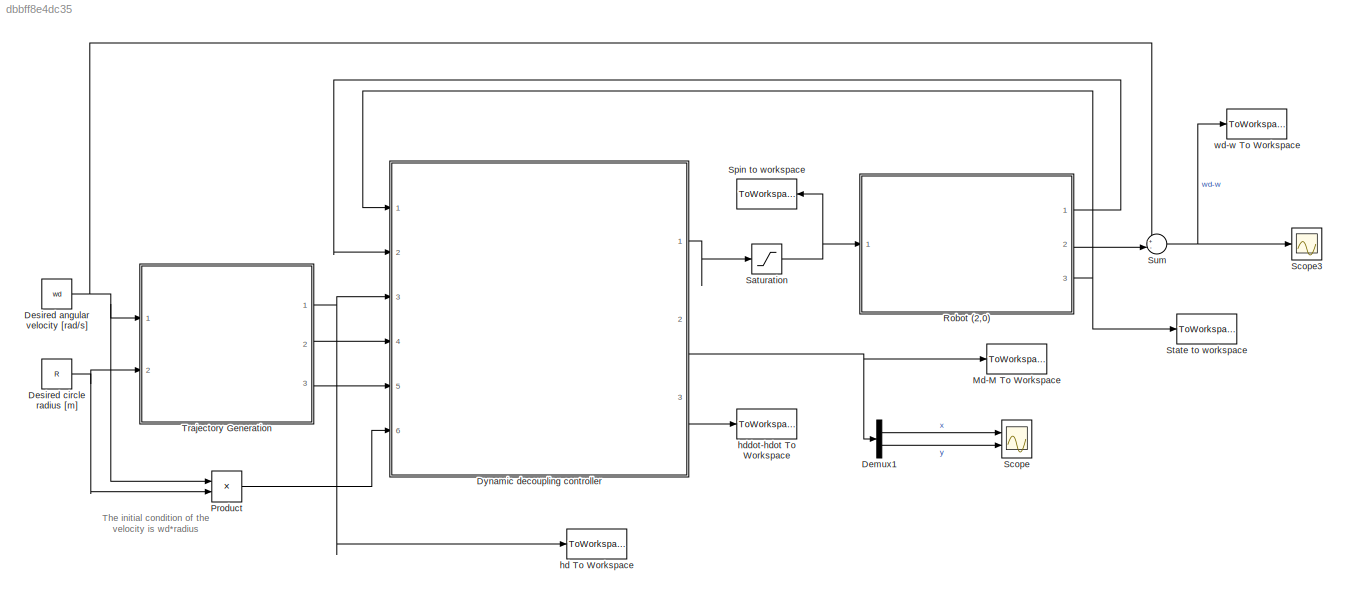
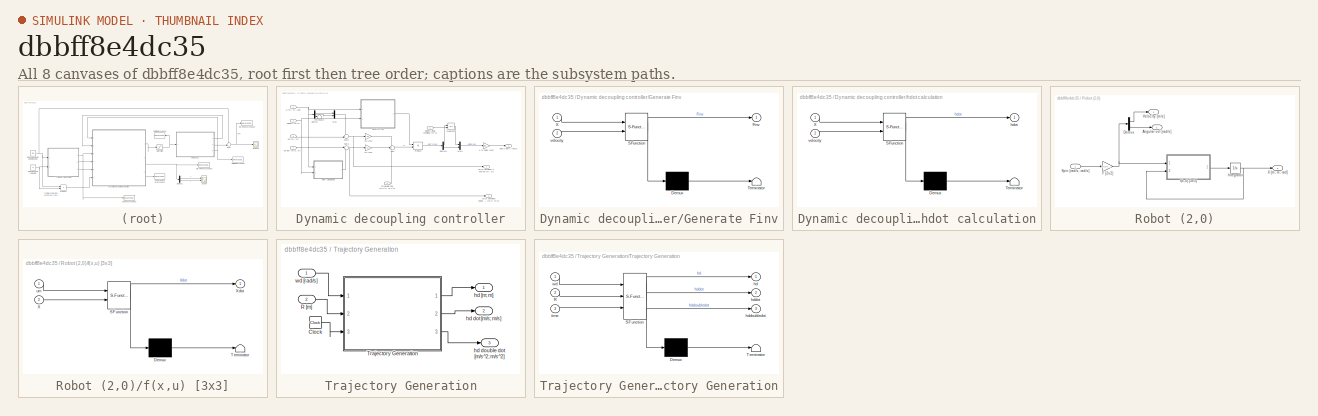
[diagram: thumbnail index - all 8 canvases of the model, root first then tree order]
MODEL slx_dbbff8e4dc35
KIND model
CONFIG AbsTol = auto
CONFIG EnableMultiTasking = off
CONFIG FixedStep = auto
CONFIG MaxStep = auto
CONFIG MinStep = auto
CONFIG RelTol = 1e-3
CONFIG SampleTimeConstraint = Unconstrained
CONFIG Solver = VariableStepAuto
CONFIG SolverName = VariableStepAuto
CONFIG StartTime = 0.0
CONFIG StopTime = time
BLOCK [Demux] Demux1
  DisplayOption = bar
  Outputs = 2
  Ports = [1, 2]
BLOCK [Constant] Desired angular velocity [rad//s]
  Value = wd
BLOCK [Constant] Desired circle radius [m]
  Value = R
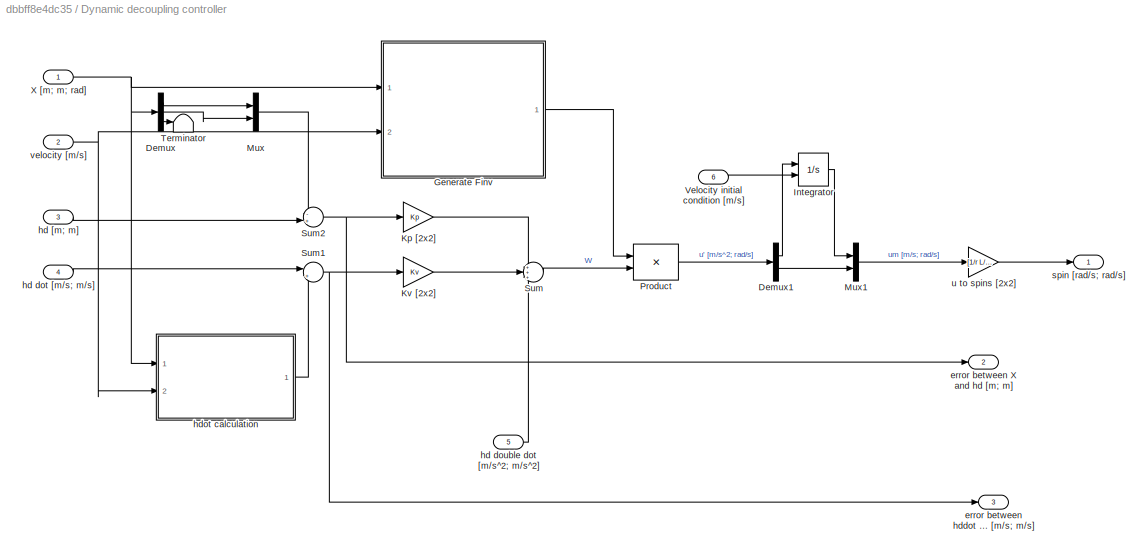
BLOCK [SubSystem] Dynamic decoupling controller
  MinAlgLoopOccurrences = on
  Ports = [6, 3]
  RequestExecContextInheritance = off
  Variant = off
BLOCK [Demux] Dynamic decoupling controller/Demux
  DisplayOption = bar
  Outputs = 3
  Ports = [1, 3]
BLOCK [Demux] Dynamic decoupling controller/Demux1
  DisplayOption = bar
  Outputs = 2
  Ports = [1, 2]
BLOCK [SubSystem] Dynamic decoupling controller/Generate Finv
  ErrorFcn = Stateflow.Translate.translate
  PermitHierarchicalResolution = ExplicitOnly
  Ports = [2, 1]
  RequestExecContextInheritance = off
  SFBlockType = MATLAB Function
  TreatAsAtomicUnit = on
  Variant = off
BLOCK [Demux] Dynamic decoupling controller/Generate Finv/ Demux 
  Outputs = 1
  Ports = [1, 1]
BLOCK [S-Function] Dynamic decoupling controller/Generate Finv/ SFunction 
  EnableBusSupport = on
  FunctionName = sf_sfun
  PortCounts = [2 2]
  Ports = [2, 2]
  SFcnIsStateOwnerBlock = off
  SFunctionDeploymentMode = off
  Tag = Stateflow S-Function dynamicDecouplingControl 1
BLOCK [Terminator] Dynamic decoupling controller/Generate Finv/ Terminator 
BLOCK [Outport] Dynamic decoupling controller/Generate Finv/Finv
  IconDisplay = Port number
BLOCK [Inport] Dynamic decoupling controller/Generate Finv/X
  IconDisplay = Port number
BLOCK [Inport] Dynamic decoupling controller/Generate Finv/velocity
  IconDisplay = Port number
  Port = 2
BLOCK [Integrator] Dynamic decoupling controller/Integrator
  InitialConditionSource = external
  Ports = [2, 1]
BLOCK [Gain] Dynamic decoupling controller/Kp [2x2]
  Gain = Kp
  Multiplication = Matrix(K*u)
  OutDataTypeStr = Inherit: Inherit via internal rule
  ParamDataTypeStr = Inherit: Inherit via internal rule
  SaturateOnIntegerOverflow = off
BLOCK [Gain] Dynamic decoupling controller/Kv [2x2]
  Gain = Kv
  Multiplication = Matrix(K*u)
  OutDataTypeStr = Inherit: Inherit via internal rule
  ParamDataTypeStr = Inherit: Inherit via internal rule
  SaturateOnIntegerOverflow = off
BLOCK [Mux] Dynamic decoupling controller/Mux
  DisplayOption = bar
  Inputs = 2
  Ports = [2, 1]
BLOCK [Mux] Dynamic decoupling controller/Mux1
  DisplayOption = bar
  Inputs = 2
  Ports = [2, 1]
BLOCK [Product] Dynamic decoupling controller/Product
  InputSameDT = off
  Multiplication = Matrix(*)
  OutDataTypeStr = Inherit: Inherit via internal rule
  Ports = [2, 1]
  RndMeth = Floor
  SaturateOnIntegerOverflow = off
BLOCK [Sum] Dynamic decoupling controller/Sum
  IconShape = round
  InputSameDT = off
  Inputs = +++
  OutDataTypeStr = Inherit: Inherit via internal rule
  Ports = [3, 1]
  SaturateOnIntegerOverflow = off
BLOCK [Sum] Dynamic decoupling controller/Sum1
  IconShape = round
  InputSameDT = off
  Inputs = |+-
  OutDataTypeStr = Inherit: Inherit via internal rule
  Ports = [2, 1]
  SaturateOnIntegerOverflow = off
BLOCK [Sum] Dynamic decoupling controller/Sum2
  IconShape = round
  InputSameDT = off
  Inputs = -+|
  OutDataTypeStr = Inherit: Inherit via internal rule
  Ports = [2, 1]
  SaturateOnIntegerOverflow = off
BLOCK [Terminator] Dynamic decoupling controller/Terminator
BLOCK [Inport] Dynamic decoupling controller/Velocity initial condition [m//s]
  IconDisplay = Port number
  Port = 6
BLOCK [Inport] Dynamic decoupling controller/X [m; m; rad]
  IconDisplay = Port number
BLOCK [Outport] Dynamic decoupling controller/error between X and hd [m; m]
  IconDisplay = Port number
  Port = 2
BLOCK [Outport] Dynamic decoupling controller/error between hddot and hdot [m//s; m//s]
  IconDisplay = Port number
  Port = 3
BLOCK [Inport] Dynamic decoupling controller/hd [m; m]
  IconDisplay = Port number
  Port = 3
BLOCK [Inport] Dynamic decoupling controller/hd dot [m//s; m//s]
  IconDisplay = Port number
  Port = 4
BLOCK [Inport] Dynamic decoupling controller/hd double dot [m//s^2; m//s^2]
  IconDisplay = Port number
  Port = 5
BLOCK [SubSystem] Dynamic decoupling controller/hdot calculation
  ErrorFcn = Stateflow.Translate.translate
  PermitHierarchicalResolution = ExplicitOnly
  Ports = [2, 1]
  RequestExecContextInheritance = off
  SFBlockType = MATLAB Function
  TreatAsAtomicUnit = on
  Variant = off
BLOCK [Demux] Dynamic decoupling controller/hdot calculation/ Demux 
  Outputs = 1
  Ports = [1, 1]
BLOCK [S-Function] Dynamic decoupling controller/hdot calculation/ SFunction 
  EnableBusSupport = on
  FunctionName = sf_sfun
  PortCounts = [2 2]
  Ports = [2, 2]
  SFcnIsStateOwnerBlock = off
  SFunctionDeploymentMode = off
  Tag = Stateflow S-Function dynamicDecouplingControl 4
BLOCK [Terminator] Dynamic decoupling controller/hdot calculation/ Terminator 
BLOCK [Inport] Dynamic decoupling controller/hdot calculation/X
  IconDisplay = Port number
BLOCK [Outport] Dynamic decoupling controller/hdot calculation/hdot
  IconDisplay = Port number
BLOCK [Inport] Dynamic decoupling controller/hdot calculation/velocity
  IconDisplay = Port number
  Port = 2
BLOCK [Outport] Dynamic decoupling controller/spin [rad//s; rad//s]
  IconDisplay = Port number
BLOCK [Gain] Dynamic decoupling controller/u to spins [2x2]
  Gain = [1/r L/r; 1/r -L/r]
  Multiplication = Matrix(K*u)
  OutDataTypeStr = Inherit: Inherit via internal rule
  ParamDataTypeStr = Inherit: Inherit via internal rule
  SaturateOnIntegerOverflow = off
BLOCK [Inport] Dynamic decoupling controller/velocity [m//s]
  IconDisplay = Port number
  Port = 2
BLOCK [ToWorkspace] Md-M To Workspace
  FixptAsFi = on
  MaxDataPoints = inf
  Ports = [1]
  SampleTime = -1
  Save2DSignal = 2-D array (concatenate along first dimension)
  VariableName = Md_M
BLOCK [Product] Product
  InputSameDT = off
  OutDataTypeStr = Inherit: Inherit via internal rule
  Ports = [2, 1]
  RndMeth = Floor
  SaturateOnIntegerOverflow = off
BLOCK [SubSystem] Robot (2,0)
  Ports = [1, 3]
  RequestExecContextInheritance = off
  Variant = off
BLOCK [Outport] Robot (2,0)/Angular vel [rad//s]
  IconDisplay = Port number
  Port = 2
BLOCK [Demux] Robot (2,0)/Demux
  DisplayOption = bar
  Outputs = 2
  Ports = [1, 2]
BLOCK [Gain] Robot (2,0)/F [2x2]
  Gain = [r/2 r/2; r/(2*L) -r/(2*L)]
  Multiplication = Matrix(K*u)
  OutDataTypeStr = Inherit: Inherit via internal rule
  ParamDataTypeStr = Inherit: Inherit via internal rule
  SaturateOnIntegerOverflow = off
BLOCK [Integrator] Robot (2,0)/Integrator
  InitialCondition = Xstart
  Ports = [1, 1]
BLOCK [Inport] Robot (2,0)/Spin [rad//s; rad//s]
  IconDisplay = Port number
BLOCK [Outport] Robot (2,0)/Velocity [m//s]
  IconDisplay = Port number
BLOCK [Outport] Robot (2,0)/X [m; m; rad]
  IconDisplay = Port number
  Port = 3
BLOCK [SubSystem] Robot (2,0)/f(x,u) [3x3]
  ErrorFcn = Stateflow.Translate.translate
  PermitHierarchicalResolution = ExplicitOnly
  Ports = [2, 1]
  RequestExecContextInheritance = off
  SFBlockType = MATLAB Function
  TreatAsAtomicUnit = on
  Variant = off
BLOCK [Demux] Robot (2,0)/f(x,u) [3x3]/ Demux 
  Outputs = 1
  Ports = [1, 1]
BLOCK [S-Function] Robot (2,0)/f(x,u) [3x3]/ SFunction 
  EnableBusSupport = on
  FunctionName = sf_sfun
  PortCounts = [2 2]
  Ports = [2, 2]
  SFcnIsStateOwnerBlock = off
  SFunctionDeploymentMode = off
  Tag = Stateflow S-Function dynamicDecouplingControl 2
BLOCK [Terminator] Robot (2,0)/f(x,u) [3x3]/ Terminator 
BLOCK [Inport] Robot (2,0)/f(x,u) [3x3]/X
  IconDisplay = Port number
  Port = 2
BLOCK [Outport] Robot (2,0)/f(x,u) [3x3]/Xdot
  IconDisplay = Port number
BLOCK [Inport] Robot (2,0)/f(x,u) [3x3]/um
  IconDisplay = Port number
BLOCK [Saturate] Saturation
  InputPortMap = u0
  LowerLimit = satMin
  Ports = [1, 1]
  UpperLimit = satMax
BLOCK [Scope] Scope
  NumInputPorts = 2
  Ports = [2]
  ScopeSpecificationString = Simulink.scopes.TimeScopeBlockCfg('CurrentConfiguration', extmgr.ConfigurationSet(extmgr.Configuration('Core','General UI',true),extmgr.Configuration('Core','Source UI',true),extmgr.Configuration('Sources','WiredSimulink',true),extmgr.Configuration('Visuals','Time Domain',true,'SerializedDisplays',{struct('MinYLimReal','-5612749978155.64258','MaxYLimReal','6332187255316.31934','YLabelReal','','Min...<+1417ch>
BLOCK [Scope] Scope3
  NumInputPorts = 1
  Ports = [1]
  ScopeSpecificationString = Simulink.scopes.TimeScopeBlockCfg('CurrentConfiguration', extmgr.ConfigurationSet(extmgr.Configuration('Core','General UI',true),extmgr.Configuration('Core','Source UI',true),extmgr.Configuration('Sources','WiredSimulink',true,'DataLoggingVariableName','ScopeData1'),extmgr.Configuration('Visuals','Time Domain',true),extmgr.Configuration('Tools','Plot Navigation',true),extmgr.Configuration('Tools',...<+40ch>
BLOCK [ToWorkspace] Spin to workspace
  FixptAsFi = on
  MaxDataPoints = inf
  Ports = [1]
  SampleTime = -1
  Save2DSignal = 2-D array (concatenate along first dimension)
  VariableName = spin
BLOCK [ToWorkspace] State to workspace
  FixptAsFi = on
  MaxDataPoints = inf
  Ports = [1]
  SampleTime = -1
  Save2DSignal = 2-D array (concatenate along first dimension)
  VariableName = X
BLOCK [Sum] Sum
  IconShape = round
  InputSameDT = off
  Inputs = +-|
  OutDataTypeStr = Inherit: Inherit via internal rule
  Ports = [2, 1]
  SaturateOnIntegerOverflow = off
BLOCK [SubSystem] Trajectory Generation
  Ports = [2, 3]
  RequestExecContextInheritance = off
  Variant = off
BLOCK [Clock] Trajectory Generation/Clock
BLOCK [Inport] Trajectory Generation/R [m]
  IconDisplay = Port number
  Port = 2
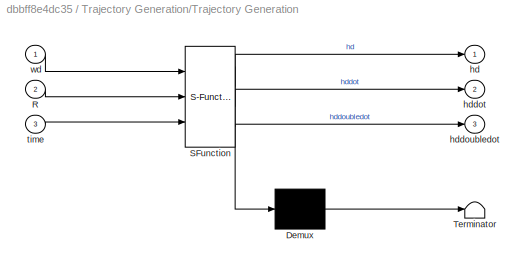
BLOCK [SubSystem] Trajectory Generation/Trajectory Generation
  ErrorFcn = Stateflow.Translate.translate
  PermitHierarchicalResolution = ExplicitOnly
  Ports = [3, 3]
  RequestExecContextInheritance = off
  SFBlockType = MATLAB Function
  TreatAsAtomicUnit = on
  Variant = off
BLOCK [Demux] Trajectory Generation/Trajectory Generation/ Demux 
  Outputs = 1
  Ports = [1, 1]
BLOCK [S-Function] Trajectory Generation/Trajectory Generation/ SFunction 
  EnableBusSupport = on
  FunctionName = sf_sfun
  PortCounts = [3 4]
  Ports = [3, 4]
  SFcnIsStateOwnerBlock = off
  SFunctionDeploymentMode = off
  Tag = Stateflow S-Function dynamicDecouplingControl 3
BLOCK [Terminator] Trajectory Generation/Trajectory Generation/ Terminator 
BLOCK [Inport] Trajectory Generation/Trajectory Generation/R
  IconDisplay = Port number
  Port = 2
BLOCK [Outport] Trajectory Generation/Trajectory Generation/hd
  IconDisplay = Port number
BLOCK [Outport] Trajectory Generation/Trajectory Generation/hddot
  IconDisplay = Port number
  Port = 2
BLOCK [Outport] Trajectory Generation/Trajectory Generation/hddoubledot
  IconDisplay = Port number
  Port = 3
BLOCK [Inport] Trajectory Generation/Trajectory Generation/time
  IconDisplay = Port number
  Port = 3
BLOCK [Inport] Trajectory Generation/Trajectory Generation/wd
  IconDisplay = Port number
BLOCK [Outport] Trajectory Generation/hd [m; m]
  IconDisplay = Port number
BLOCK [Outport] Trajectory Generation/hd dot [m//s; m//s]
  IconDisplay = Port number
  Port = 2
BLOCK [Outport] Trajectory Generation/hd double dot [m//s^2; m//s^2]
  IconDisplay = Port number
  Port = 3
BLOCK [Inport] Trajectory Generation/wd [rad//s]
  IconDisplay = Port number
BLOCK [ToWorkspace] hd To Workspace
  FixptAsFi = on
  MaxDataPoints = inf
  Ports = [1]
  SampleTime = -1
  Save2DSignal = 2-D array (concatenate along first dimension)
  VariableName = hd
BLOCK [ToWorkspace] hddot-hdot To Workspace
  FixptAsFi = on
  MaxDataPoints = inf
  Ports = [1]
  SampleTime = -1
  Save2DSignal = 2-D array (concatenate along first dimension)
  VariableName = hddot_hdot
BLOCK [ToWorkspace] wd-w To Workspace
  FixptAsFi = on
  MaxDataPoints = inf
  Ports = [1]
  SampleTime = -1
  Save2DSignal = 2-D array (concatenate along first dimension)
  VariableName = wd_w
ANNOTATION (root): The initial condition of the velocity is wd*radius
LINE Demux1:1 -> Scope:1
LINE Demux1:2 -> Scope:2
NET Desired angular velocity [rad//s]:1 -> Product:1, Sum:1, Trajectory Generation:1
NET Desired circle radius [m]:1 -> Product:2, Trajectory Generation:2
LINE Dynamic decoupling controller/Demux1:1 -> Dynamic decoupling controller/Integrator:1
LINE Dynamic decoupling controller/Demux1:2 -> Dynamic decoupling controller/Mux1:2
LINE Dynamic decoupling controller/Demux:1 -> Dynamic decoupling controller/Mux:1
LINE Dynamic decoupling controller/Demux:2 -> Dynamic decoupling controller/Mux:2
LINE Dynamic decoupling controller/Demux:3 -> Dynamic decoupling controller/Terminator:1
LINE Dynamic decoupling controller/Generate Finv:1 -> Dynamic decoupling controller/Product:1
LINE Dynamic decoupling controller/Integrator:1 -> Dynamic decoupling controller/Mux1:1
LINE Dynamic decoupling controller/Kp [2x2]:1 -> Dynamic decoupling controller/Sum:1
LINE Dynamic decoupling controller/Kv [2x2]:1 -> Dynamic decoupling controller/Sum:2
LINE Dynamic decoupling controller/Mux1:1 -> Dynamic decoupling controller/u to spins [2x2]:1
LINE Dynamic decoupling controller/Mux:1 -> Dynamic decoupling controller/Sum2:1
LINE Dynamic decoupling controller/Product:1 -> Dynamic decoupling controller/Demux1:1
NET Dynamic decoupling controller/Sum1:1 -> Dynamic decoupling controller/Kv [2x2]:1, Dynamic decoupling controller/error between hddot and hdot [m//s; m//s]:1
NET Dynamic decoupling controller/Sum2:1 -> Dynamic decoupling controller/Kp [2x2]:1, Dynamic decoupling controller/error between X and hd [m; m]:1
LINE Dynamic decoupling controller/Sum:1 -> Dynamic decoupling controller/Product:2
LINE Dynamic decoupling controller/Velocity initial condition [m//s]:1 -> Dynamic decoupling controller/Integrator:2
NET Dynamic decoupling controller/X [m; m; rad]:1 -> Dynamic decoupling controller/Demux:1, Dynamic decoupling controller/Generate Finv:1, Dynamic decoupling controller/hdot calculation:1
LINE Dynamic decoupling controller/hd [m; m]:1 -> Dynamic decoupling controller/Sum2:2
LINE Dynamic decoupling controller/hd dot [m//s; m//s]:1 -> Dynamic decoupling controller/Sum1:1
LINE Dynamic decoupling controller/hd double dot [m//s^2; m//s^2]:1 -> Dynamic decoupling controller/Sum:3
LINE Dynamic decoupling controller/hdot calculation:1 -> Dynamic decoupling controller/Sum1:2
LINE Dynamic decoupling controller/u to spins [2x2]:1 -> Dynamic decoupling controller/spin [rad//s; rad//s]:1
NET Dynamic decoupling controller/velocity [m//s]:1 -> Dynamic decoupling controller/Generate Finv:2, Dynamic decoupling controller/hdot calculation:2
LINE Dynamic decoupling controller:1 -> Saturation:1
NET Dynamic decoupling controller:2 -> Demux1:1, Md-M To Workspace:1
LINE Dynamic decoupling controller:3 -> hddot-hdot To Workspace:1
LINE Product:1 -> Dynamic decoupling controller:6
LINE Robot (2,0)/Demux:1 -> Robot (2,0)/Velocity [m//s]:1
LINE Robot (2,0)/Demux:2 -> Robot (2,0)/Angular vel [rad//s]:1
NET Robot (2,0)/F [2x2]:1 -> Robot (2,0)/Demux:1, Robot (2,0)/f(x,u) [3x3]:1
NET Robot (2,0)/Integrator:1 -> Robot (2,0)/X [m; m; rad]:1, Robot (2,0)/f(x,u) [3x3]:2
LINE Robot (2,0)/Spin [rad//s; rad//s]:1 -> Robot (2,0)/F [2x2]:1
LINE Robot (2,0)/f(x,u) [3x3]:1 -> Robot (2,0)/Integrator:1
LINE Robot (2,0):1 -> Dynamic decoupling controller:2
LINE Robot (2,0):2 -> Sum:2
NET Robot (2,0):3 -> Dynamic decoupling controller:1, State to workspace:1
NET Saturation:1 -> Robot (2,0):1, Spin to workspace:1
NET Sum:1 -> Scope3:1, wd-w To Workspace:1
LINE Trajectory Generation/Clock:1 -> Trajectory Generation/Trajectory Generation:3
LINE Trajectory Generation/R [m]:1 -> Trajectory Generation/Trajectory Generation:2
LINE Trajectory Generation/Trajectory Generation:1 -> Trajectory Generation/hd [m; m]:1
LINE Trajectory Generation/Trajectory Generation:2 -> Trajectory Generation/hd dot [m//s; m//s]:1
LINE Trajectory Generation/Trajectory Generation:3 -> Trajectory Generation/hd double dot [m//s^2; m//s^2]:1
LINE Trajectory Generation/wd [rad//s]:1 -> Trajectory Generation/Trajectory Generation:1
NET Trajectory Generation:1 -> Dynamic decoupling controller:3, hd To Workspace:1
LINE Trajectory Generation:2 -> Dynamic decoupling controller:4
LINE Trajectory Generation:3 -> Dynamic decoupling controller:5
note: NET lines group one-source signal fan-out (src -> all destinations, sorted); 1:1 wires keep LINE
CHART Dynamic decoupling controller/Generate Finv states=1 transitions=1
  STATE_LABEL 'eML_blk_kernel()'
  STATE_LABEL 'SCRIPT:\nfunction Finv = generateFinv(X, velocity)\n\nF = [cos(X(3)) -velocity*sin(X(3)); sin(X(3)) velocity*cos(X(3))];\nFinv = inv(F);\n'
CHART Robot (2,0)/f(x,u) [3x3] states=1 transitions=1
  STATE_LABEL 'eML_blk_kernel()'
  STATE_LABEL 'SCRIPT:\nfunction Xdot  = evolutionModel(um, X)\n\nXdot = zeros(3,1);\nXdot(1) = um(1) * cos(X(3));\nXdot(2) = um(1) * sin(X(3));\nXdot(3) = um(2);\n'
CHART Trajectory Generation/Trajectory Generation states=1 transitions=1
  STATE_LABEL 'eML_blk_kernel()'
  STATE_LABEL 'SCRIPT:\nfunction [hd, hddot, hddoubledot] = trajectoryGeneration(wd, R, time)\n\nhd = [R*cos(wd*time); R*sin(wd*time)];\n\nhddot = [-R*sin(wd*time)*wd; R*cos(wd*time)*wd];\n\nhddoubledot = [-R*cos(wd*time)*wd*wd; -R*sin(wd*time)*wd*wd];\n'
CHART Dynamic decoupling controller/hdot calculation states=1 transitions=1
  STATE_LABEL 'eML_blk_kernel()'
  STATE_LABEL 'SCRIPT:\nfunction hdot = calculatehdot(X, velocity)\n\nhdot = [velocity*cos(X(3)); velocity*sin(X(3))];\n'
